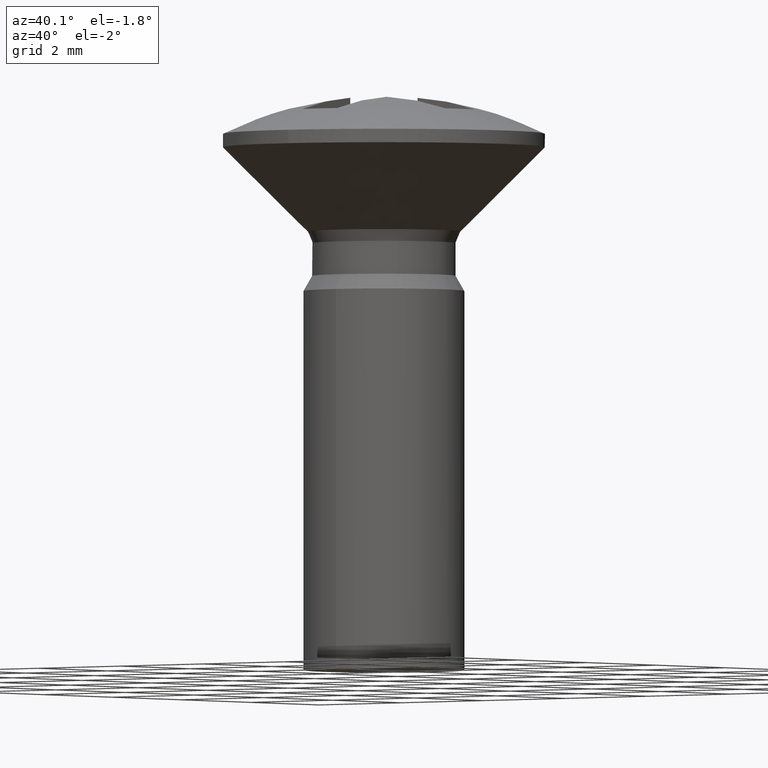
[diagram: clean part render]
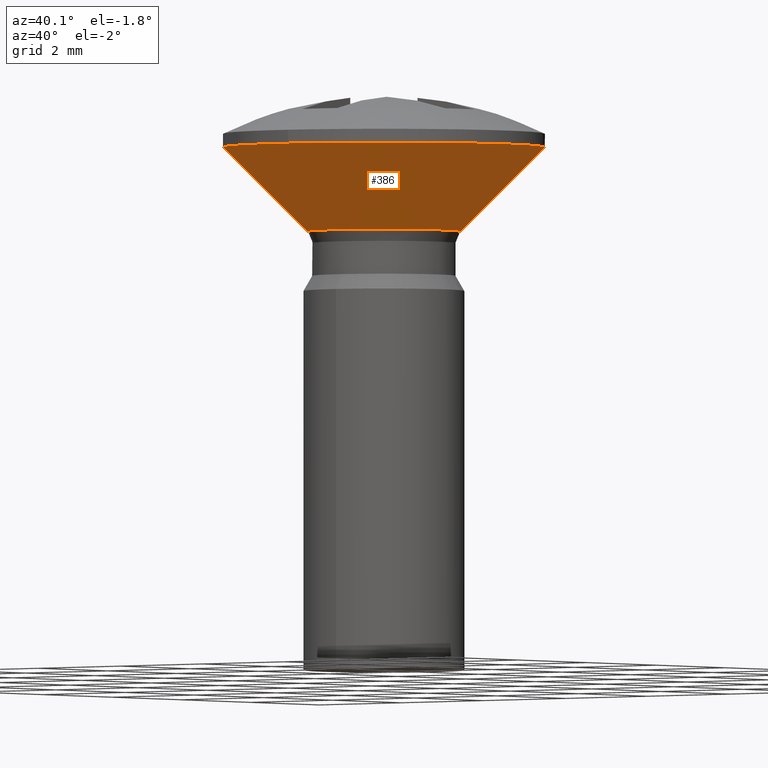
[diagram: same view with one face highlighted and labeled with its STEP entity id]
A machine part, auxiliary view. The second image highlights one B-rep face of the part: STEP entity #386.
In plain terms, the highlighted face is a freeform B-spline surface patch.
Its self-contained STEP definition (entity closure, byte-faithful):
#119=CARTESIAN_POINT('',(0.183144973618660,-2.994404434714490,-0.249999999999993));
#120=VERTEX_POINT('',#119);
#126=CARTESIAN_POINT('',(3.0,0.0,-0.249999999999993));
#127=VERTEX_POINT('',#126);
#128=CARTESIAN_POINT('',(3.0,0.0,-0.249999999999993));
#129=CARTESIAN_POINT('',(3.0,-2.822119418741111,-0.249999999999993));
#130=CARTESIAN_POINT('',(0.183144973618660,-2.994404434714490,-0.249999999999993));
#138=(BOUNDED_CURVE()B_SPLINE_CURVE(2,(#128,#129,#130),.UNSPECIFIED.,.F.,.U.)B_SPLINE_CURVE_WITH_KNOTS((3,3),(0.500000000000000,0.739333036574116),.UNSPECIFIED.)CURVE()GEOMETRIC_REPRESENTATION_ITEM()RATIONAL_B_SPLINE_CURVE((1.0,0.719603906197637,0.976072200981197))REPRESENTATION_ITEM(''));
#139=EDGE_CURVE('',#127,#120,#138,.T.);
#141=CARTESIAN_POINT('',(0.751140012174877,2.904442921132671,-0.249999999998699));
#142=VERTEX_POINT('',#141);
#143=CARTESIAN_POINT('',(0.751140012174877,2.904442921132672,-0.249999999998699));
#144=CARTESIAN_POINT('',(3.0,2.322848183506834,-0.249999999999993));
#145=CARTESIAN_POINT('',(3.0,0.0,-0.249999999999993));
#153=(BOUNDED_CURVE()B_SPLINE_CURVE(2,(#143,#144,#145),.UNSPECIFIED.,.F.,.U.)B_SPLINE_CURVE_WITH_KNOTS((3,3),(0.292726229711675,0.500000000000000),.UNSPECIFIED.)CURVE()GEOMETRIC_REPRESENTATION_ITEM()RATIONAL_B_SPLINE_CURVE((0.916996154474757,0.757163672978610,1.0))REPRESENTATION_ITEM(''));
#154=EDGE_CURVE('',#142,#127,#153,.T.);
#156=CARTESIAN_POINT('',(-1.258776337347077,2.723138287443132,-0.249999999999386));
#157=VERTEX_POINT('',#156);
#173=CARTESIAN_POINT('',(-3.0,0.0,-0.249999999999993));
#174=VERTEX_POINT('',#173);
#175=CARTESIAN_POINT('',(-3.0,0.0,-0.249999999999993));
#176=CARTESIAN_POINT('',(-3.000000000000000,1.918254027727325,-0.249999999999993));
#177=CARTESIAN_POINT('',(-1.258776337347076,2.723138287443133,-0.249999999999386));
#185=(BOUNDED_CURVE()B_SPLINE_CURVE(2,(#175,#176,#177),.UNSPECIFIED.,.F.,.U.)B_SPLINE_CURVE_WITH_KNOTS((3,3),(0.0,0.178730602233897),.UNSPECIFIED.)CURVE()GEOMETRIC_REPRESENTATION_ITEM()RATIONAL_B_SPLINE_CURVE((1.0,0.790604074444988,0.880611827928149))REPRESENTATION_ITEM(''));
#186=EDGE_CURVE('',#174,#157,#185,.T.);
#188=CARTESIAN_POINT('',(-2.808431437261378,-1.054852057019379,-0.249999999999993));
#189=VERTEX_POINT('',#188);
#190=CARTESIAN_POINT('',(-2.808431437261378,-1.054852057019379,-0.249999999999993));
#191=CARTESIAN_POINT('',(-3.000000000000000,-0.544821128602416,-0.249999999999993));
#192=CARTESIAN_POINT('',(-3.0,0.0,-0.249999999999993));
#200=(BOUNDED_CURVE()B_SPLINE_CURVE(2,(#190,#191,#192),.UNSPECIFIED.,.F.,.U.)B_SPLINE_CURVE_WITH_KNOTS((3,3),(0.940284275853961,1.0),.UNSPECIFIED.)CURVE()GEOMETRIC_REPRESENTATION_ITEM()RATIONAL_B_SPLINE_CURVE((0.893499683075938,0.930038677364362,1.0))REPRESENTATION_ITEM(''));
#201=EDGE_CURVE('',#189,#174,#200,.T.);
#245=CARTESIAN_POINT('',(0.183144973618660,-2.994404434714490,-0.249999999999993));
#246=CARTESIAN_POINT('',(0.091657643101391,-3.000000000000000,-0.249999999999993));
#247=CARTESIAN_POINT('',(0.0,-3.0,-0.249999999999993));
#248=CARTESIAN_POINT('',(-2.077830261945178,-3.000000000000000,-0.249999999999993));
#249=CARTESIAN_POINT('',(-2.808431437261378,-1.054852057019379,-0.249999999999993));
#257=(BOUNDED_CURVE()B_SPLINE_CURVE(2,(#245,#246,#247,#248,#249),.UNSPECIFIED.,.F.,.U.)B_SPLINE_CURVE_WITH_KNOTS((3,2,3),(0.739333036574117,0.750000000000000,0.940284275853961),.UNSPECIFIED.)CURVE()GEOMETRIC_REPRESENTATION_ITEM()RATIONAL_B_SPLINE_CURVE((0.976072200981197,0.987502874988911,1.0,0.777068103822185,0.893499683075939))REPRESENTATION_ITEM(''));
#258=EDGE_CURVE('',#120,#189,#257,.T.);
#264=CARTESIAN_POINT('',(-0.583151889933731,1.261545194145068,-1.860295653924323));
#265=CARTESIAN_POINT('',(-1.180709883541906,0.985322768714034,-1.860295653924323));
#266=CARTESIAN_POINT('',(-1.345537986711119,0.347979783782317,-1.860295653924323));
#267=CARTESIAN_POINT('',(-1.693517770493436,-0.997558202928801,-1.860295653924322));
#268=CARTESIAN_POINT('',(-0.347979783782317,-1.345537986711119,-1.860295653924323));
#269=CARTESIAN_POINT('',(0.997558202928801,-1.693517770493436,-1.860295653924322));
#270=CARTESIAN_POINT('',(1.345537986711119,-0.347979783782317,-1.860295653924323));
#271=CARTESIAN_POINT('',(1.693517770493436,0.997558202928801,-1.860295653924322));
#272=CARTESIAN_POINT('',(0.347979783782317,1.345537986711119,-1.860295653924323));
#273=CARTESIAN_POINT('',(-1.275666948525206,2.759678114778228,-0.209742608651885));
#274=CARTESIAN_POINT('',(-2.582847796999541,2.155431048711304,-0.209742608651884));
#275=CARTESIAN_POINT('',(-2.943415544494902,0.761219017872849,-0.209742608651884));
#276=CARTESIAN_POINT('',(-3.704634562367752,-2.182196526622054,-0.209742608651885));
#277=CARTESIAN_POINT('',(-0.761219017872849,-2.943415544494902,-0.209742608651885));
#278=CARTESIAN_POINT('',(2.182196526622054,-3.704634562367752,-0.209742608651885));
#279=CARTESIAN_POINT('',(2.943415544494902,-0.761219017872849,-0.209742608651884));
#280=CARTESIAN_POINT('',(3.704634562367752,2.182196526622054,-0.209742608651885));
#281=CARTESIAN_POINT('',(0.761219017872849,2.943415544494902,-0.209742608651884));
#289=(BOUNDED_SURFACE()B_SPLINE_SURFACE(2,1,((#264,#273),(#265,#274),(#266,#275),(#267,#276),(#268,#277),(#269,#278),(#270,#279),(#271,#280),(#272,#281)),.UNSPECIFIED.,.F.,.F.,.U.)B_SPLINE_SURFACE_WITH_KNOTS((3,2,2,2,3),(2,2),(0.0,2.820865119877440,7.858124262515726,12.895383405154011,17.932642547792302),(0.0,2.334160386417119),.UNSPECIFIED.)GEOMETRIC_REPRESENTATION_ITEM()RATIONAL_B_SPLINE_SURFACE(((0.855662221768731,0.855662221768731),(0.835979797464467,0.835979797464467),(1.0,1.0),(0.707106781186548,0.707106781186548),(1.0,1.0),(0.707106781186548,0.707106781186548),(1.0,1.0),(0.707106781186548,0.707106781186548),(1.0,1.0)))REPRESENTATION_ITEM('')SURFACE());
#290=CARTESIAN_POINT('',(-1.125982700330175,0.880017902004332,-1.821020150164191));
#291=VERTEX_POINT('',#290);
#292=CARTESIAN_POINT('',(-0.599630535018466,1.297193806210551,-1.821020150128732));
#293=VERTEX_POINT('',#292);
#294=CARTESIAN_POINT('',(-1.125982700330175,0.880017902004332,-1.821020150164191));
#295=CARTESIAN_POINT('',(-0.913233831456748,1.152230030135849,-1.821020150141637));
#296=CARTESIAN_POINT('',(-0.599630535018466,1.297193806210551,-1.821020150128733));
#304=(BOUNDED_CURVE()B_SPLINE_CURVE(2,(#294,#295,#296),.UNSPECIFIED.,.F.,.U.)B_SPLINE_CURVE_WITH_KNOTS((3,3),(0.106567917885781,0.178730602232127),.UNSPECIFIED.)CURVE()GEOMETRIC_REPRESENTATION_ITEM()RATIONAL_B_SPLINE_CURVE((0.856737647417130,0.844271094879346,0.880611827926366))REPRESENTATION_ITEM(''));
#305=EDGE_CURVE('',#291,#293,#304,.T.);
#306=ORIENTED_EDGE('',*,*,#305,.F.);
#307=CARTESIAN_POINT('',(-1.429079616195524,0.0,-1.821020150118700));
#308=VERTEX_POINT('',#307);
#309=CARTESIAN_POINT('',(-1.429079616195524,0.0,-1.821020150118700));
#310=CARTESIAN_POINT('',(-1.429079616195524,0.492205468937397,-1.821020150118700));
#311=CARTESIAN_POINT('',(-1.125982700330175,0.880017902004332,-1.821020150164191));
#319=(BOUNDED_CURVE()B_SPLINE_CURVE(2,(#309,#310,#311),.UNSPECIFIED.,.F.,.U.)B_SPLINE_CURVE_WITH_KNOTS((3,3),(0.0,0.106567917885781),.UNSPECIFIED.)CURVE()GEOMETRIC_REPRESENTATION_ITEM()RATIONAL_B_SPLINE_CURVE((1.0,0.875147918032744,0.856737647417130))REPRESENTATION_ITEM(''));
#320=EDGE_CURVE('',#308,#291,#319,.T.);
#321=ORIENTED_EDGE('',*,*,#320,.F.);
#322=CARTESIAN_POINT('',(-1.004142749122709,-1.016841132457686,-1.821020150170071));
#323=VERTEX_POINT('',#322);
#324=CARTESIAN_POINT('',(-1.004142749122709,-1.016841132457686,-1.821020150170071));
#325=CARTESIAN_POINT('',(-1.429079616195525,-0.597210906840352,-1.821020150118700));
#326=CARTESIAN_POINT('',(-1.429079616195524,0.0,-1.821020150118700));
#334=(BOUNDED_CURVE()B_SPLINE_CURVE(2,(#324,#325,#326),.UNSPECIFIED.,.F.,.U.)B_SPLINE_CURVE_WITH_KNOTS((3,3),(0.874051937432071,1.0),.UNSPECIFIED.)CURVE()GEOMETRIC_REPRESENTATION_ITEM()RATIONAL_B_SPLINE_CURVE((0.853561814883003,0.852442666204644,1.0))REPRESENTATION_ITEM(''));
#335=EDGE_CURVE('',#323,#308,#334,.T.);
#336=ORIENTED_EDGE('',*,*,#335,.F.);
#337=CARTESIAN_POINT('',(1.429079616195524,0.0,-1.821020150118700));
#338=VERTEX_POINT('',#337);
#339=CARTESIAN_POINT('',(1.429079616195524,0.0,-1.821020150118700));
#340=CARTESIAN_POINT('',(1.429079616195524,-1.429079616195524,-1.821020150118701));
#341=CARTESIAN_POINT('',(0.0,-1.429079616195524,-1.821020150118700));
#342=CARTESIAN_POINT('',(-0.586691100005366,-1.429079616195524,-1.821020150118700));
#343=CARTESIAN_POINT('',(-1.004142749122709,-1.016841132457686,-1.821020150170071));
#351=(BOUNDED_CURVE()B_SPLINE_CURVE(2,(#339,#340,#341,#342,#343),.UNSPECIFIED.,.F.,.U.)B_SPLINE_CURVE_WITH_KNOTS((3,2,3),(0.500000000000000,0.750000000000000,0.874051937432072),.UNSPECIFIED.)CURVE()GEOMETRIC_REPRESENTATION_ITEM()RATIONAL_B_SPLINE_CURVE((1.0,0.707106781186548,1.0,0.854664114981902,0.853561814883003))REPRESENTATION_ITEM(''));
#352=EDGE_CURVE('',#338,#323,#351,.T.);
#353=ORIENTED_EDGE('',*,*,#352,.F.);
#354=CARTESIAN_POINT('',(0.357812512758349,1.383559575862685,-1.821020729261774));
#355=VERTEX_POINT('',#354);
#356=CARTESIAN_POINT('',(0.357812512758349,1.383559575862685,-1.821020729261775));
#357=CARTESIAN_POINT('',(1.429079616195524,1.106512163042093,-1.821020150118699));
#358=CARTESIAN_POINT('',(1.429079616195524,0.0,-1.821020150118700));
#366=(BOUNDED_CURVE()B_SPLINE_CURVE(2,(#356,#357,#358),.UNSPECIFIED.,.F.,.U.)B_SPLINE_CURVE_WITH_KNOTS((3,3),(0.292726158863134,0.500000000000000),.UNSPECIFIED.)CURVE()GEOMETRIC_REPRESENTATION_ITEM()RATIONAL_B_SPLINE_CURVE((0.916996263739938,0.757163589974380,1.0))REPRESENTATION_ITEM(''));
#367=EDGE_CURVE('',#355,#338,#366,.T.);
#368=ORIENTED_EDGE('',*,*,#367,.F.);
#369=CARTESIAN_POINT('',(0.357812512758349,1.383559575862685,-1.821020729261774));
#370=CARTESIAN_POINT('',(0.751140012174877,2.904442921132671,-0.249999999998699));
#371=QUASI_UNIFORM_CURVE('',1,(#369,#370),.UNSPECIFIED.,.F.,.U.);
#372=EDGE_CURVE('',#355,#142,#371,.T.);
#373=ORIENTED_EDGE('',*,*,#372,.T.);
#374=ORIENTED_EDGE('',*,*,#154,.T.);
#375=ORIENTED_EDGE('',*,*,#139,.T.);
#376=ORIENTED_EDGE('',*,*,#258,.T.);
#377=ORIENTED_EDGE('',*,*,#201,.T.);
#378=ORIENTED_EDGE('',*,*,#186,.T.);
#379=CARTESIAN_POINT('',(-0.599630535018466,1.297193806210551,-1.821020150128732));
#380=CARTESIAN_POINT('',(-1.258776337347077,2.723138287443132,-0.249999999999386));
#381=QUASI_UNIFORM_CURVE('',1,(#379,#380),.UNSPECIFIED.,.F.,.U.);
#382=EDGE_CURVE('',#293,#157,#381,.T.);
#383=ORIENTED_EDGE('',*,*,#382,.F.);
#384=EDGE_LOOP('',(#306,#321,#336,#353,#368,#373,#374,#375,#376,#377,#378,#383));
#385=FACE_OUTER_BOUND('',#384,.T.);
#386=ADVANCED_FACE('',(#385),#289,.T.);